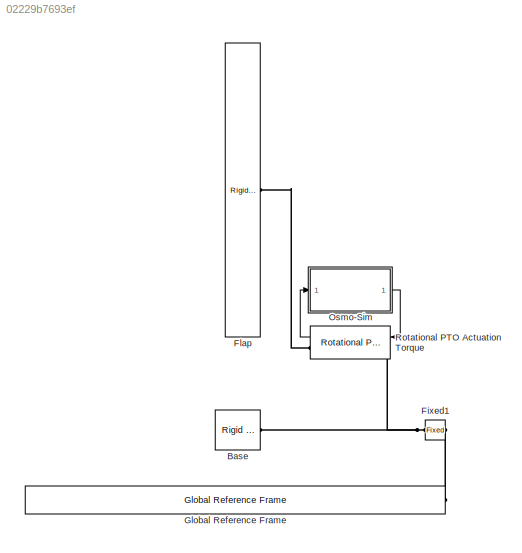
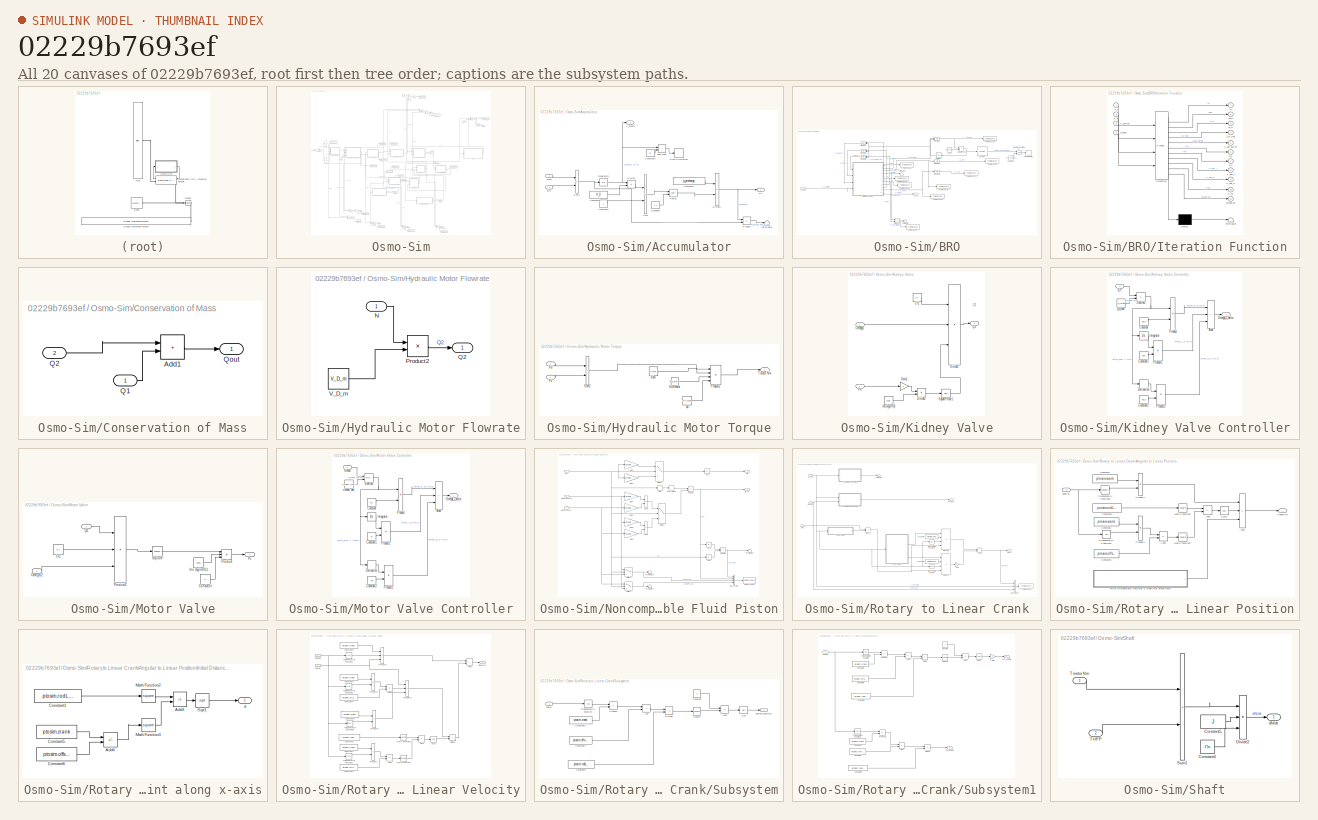
[diagram: thumbnail index - all 20 canvases of the model, root first then tree order]
MODEL slx_02229b7693ef
KIND model
CONFIG AbsTol = auto
CONFIG EnableMultiTasking = on
CONFIG FixedStep = 0.1
CONFIG MaxStep = 0.1
CONFIG MinStep = auto
CONFIG RelTol = 1e-3
CONFIG SampleTimeConstraint = Unconstrained
CONFIG SolverName = ode4
CONFIG StartTime = 0
CONFIG StopTime = 1000
BLOCK [Reference] Base  REF=WECSim_Lib/Body Elements/Rigid Body
  AttributesFormatString = %<body>
  Ports = [0, 0, 0, 0, 0, 0, 1]
  SourceBlock = WECSim_Lib/Body Elements/Rigid Body
  SourceProductName = WEC-Sim
  SourceType = Rigid Body
BLOCK [Reference] Fixed1  REF=WECSim_Lib/Constraints/Fixed
  AttributesFormatString = %<constraint>
  NameLocation = top
  Ports = [0, 0, 0, 0, 0, 1, 1]
  SourceBlock = WECSim_Lib/Constraints/Fixed
  SourceProductName = WEC-Sim
  SourceType = Constraints
BLOCK [Reference] Flap  REF=WECSim_Lib/Body Elements/Rigid Body
  AttributesFormatString = %<body>
  Ports = [0, 0, 0, 0, 0, 0, 1]
  SourceBlock = WECSim_Lib/Body Elements/Rigid Body
  SourceProductName = WEC-Sim
  SourceType = Rigid Body
BLOCK [Reference] Global Reference Frame  REF=WECSim_Lib/Frames/Global Reference Frame
  Ports = [0, 0, 0, 0, 0, 0, 1]
  SourceBlock = WECSim_Lib/Frames/Global Reference Frame
  SourceProductName = WEC-Sim
  SourceType = Frames
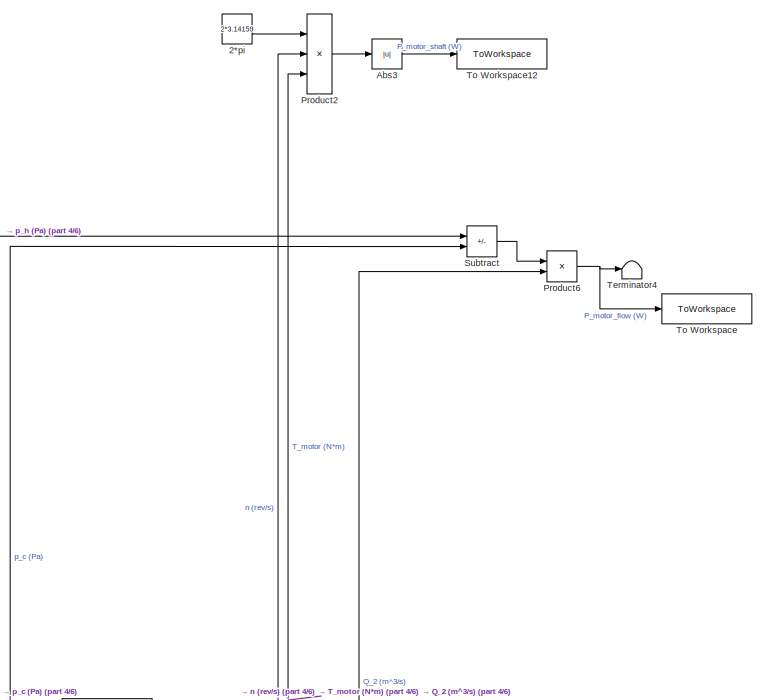
[diagram: Osmo-Sim - part 1/6, top center region]
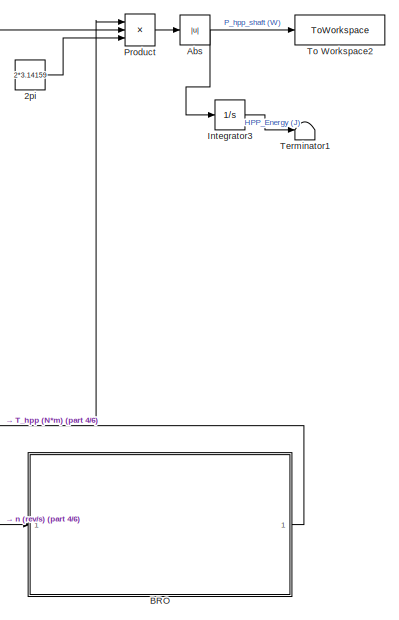
[diagram: Osmo-Sim - part 2/6, top right region]
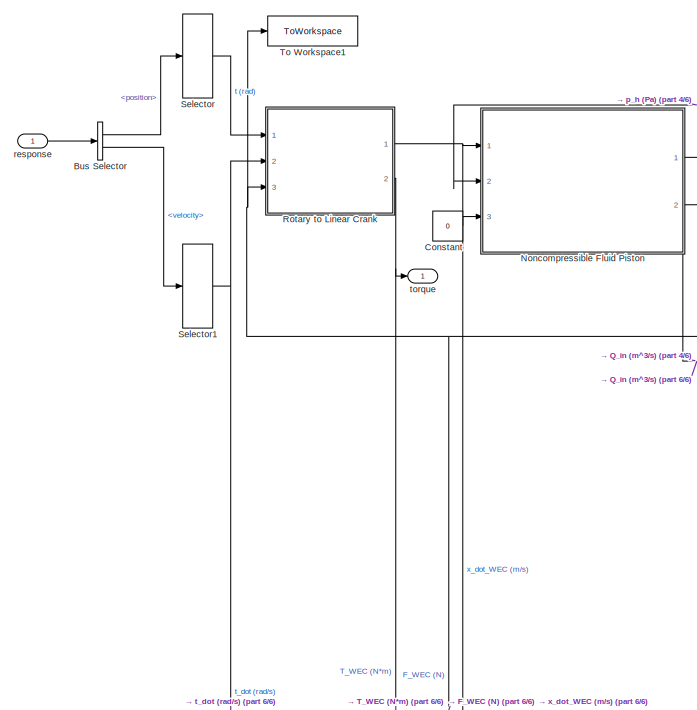
[diagram: Osmo-Sim - part 3/6, middle left region]
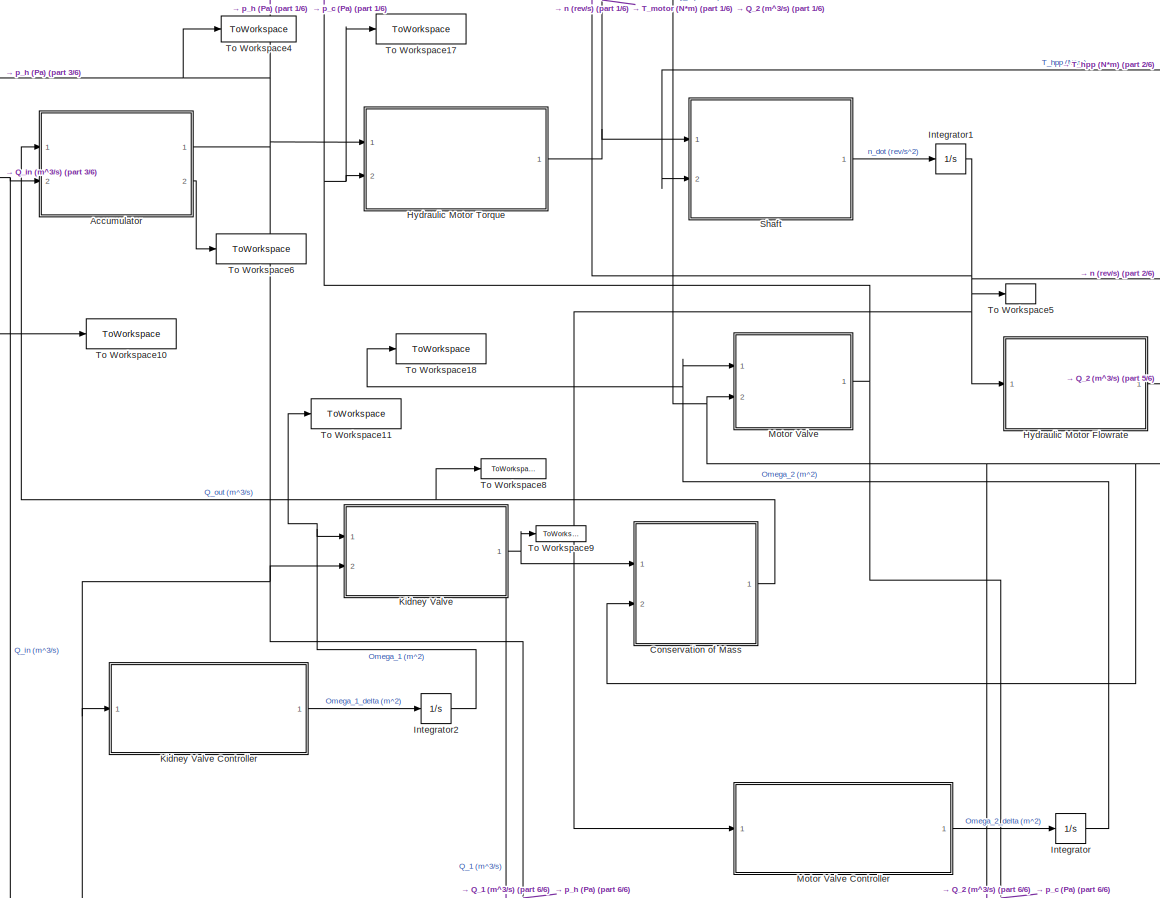
[diagram: Osmo-Sim - part 4/6, central region]
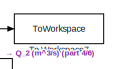
[diagram: Osmo-Sim - part 5/6, middle right region]
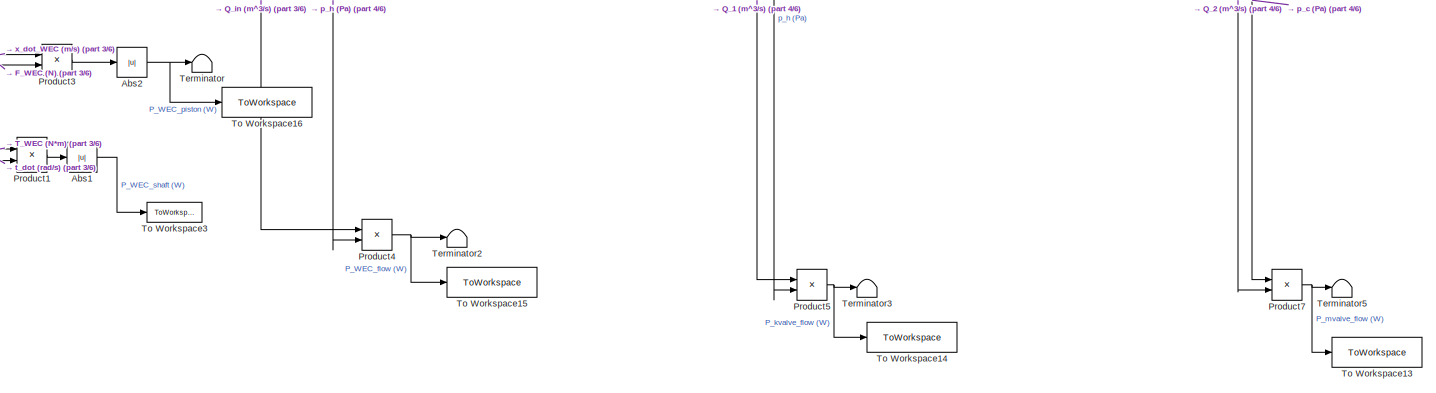
[diagram: Osmo-Sim - part 6/6, bottom center region]
BLOCK [SubSystem] Osmo-Sim
  NameLocation = top
  Ports = [1, 1]
  RequestExecContextInheritance = off
BLOCK [Constant] Osmo-Sim/2*pi
  Value = 2*3.14159
BLOCK [Constant] Osmo-Sim/2pi
  OutDataTypeStr = Inherit: Inherit via back propagation
  Value = 2*3.14159
BLOCK [Abs] Osmo-Sim/Abs
  SaturateOnIntegerOverflow = off
BLOCK [Abs] Osmo-Sim/Abs1
  SaturateOnIntegerOverflow = off
BLOCK [Abs] Osmo-Sim/Abs2
  SaturateOnIntegerOverflow = off
BLOCK [Abs] Osmo-Sim/Abs3
  SaturateOnIntegerOverflow = off
BLOCK [SubSystem] Osmo-Sim/Accumulator
  Ports = [2, 2]
  RequestExecContextInheritance = off
BLOCK [Constant] Osmo-Sim/Accumulator/Constant5
BLOCK [Constant] Osmo-Sim/Accumulator/Constant6
  Value = 0
BLOCK [Constant] Osmo-Sim/Accumulator/Constant7
  Value = p_precharge
BLOCK [Constant] Osmo-Sim/Accumulator/Constant8
  Value = V_0
BLOCK [Product] Osmo-Sim/Accumulator/Divide
  Inputs = */
  Ports = [2, 1]
BLOCK [Product] Osmo-Sim/Accumulator/Divide1
  Inputs = */
  Ports = [2, 1]
BLOCK [Constant] Osmo-Sim/Accumulator/Exponent
  Value = 1.4
BLOCK [Integrator] Osmo-Sim/Accumulator/Integrator4
  InitialCondition = V_rated
  Ports = [1, 1]
BLOCK [RelationalOperator] Osmo-Sim/Accumulator/Less Than
  InputSameDT = off
  Operator = <
  OutDataTypeStr = boolean
  Ports = [2, 1]
  RndMeth = Simplest
BLOCK [Outport] Osmo-Sim/Accumulator/Ph
BLOCK [Math] Osmo-Sim/Accumulator/Power
  Operator = pow
  Ports = [2, 1]
BLOCK [Product] Osmo-Sim/Accumulator/Product
  Ports = [2, 1]
BLOCK [Inport] Osmo-Sim/Accumulator/Qin
  Port = 2
BLOCK [Inport] Osmo-Sim/Accumulator/Qout
BLOCK [Stop] Osmo-Sim/Accumulator/Stop Simulation
BLOCK [Sum] Osmo-Sim/Accumulator/Sum
  IconShape = rectangular
  Inputs = -+
  Ports = [2, 1]
BLOCK [Sum] Osmo-Sim/Accumulator/Sum2
  IconShape = rectangular
  Inputs = -+
  Ports = [2, 1]
BLOCK [Terminator] Osmo-Sim/Accumulator/Terminator
BLOCK [Outport] Osmo-Sim/Accumulator/V_accum
  Port = 2
BLOCK [SubSystem] Osmo-Sim/BRO
  Ports = [1, 1]
  RequestExecContextInheritance = off
BLOCK [Constant] Osmo-Sim/BRO/Constant
  Value = num_batches
BLOCK [Reference] Osmo-Sim/BRO/Counter  REF=dspswit3/Counter
  Ports = [1, 1]
  SourceBlock = dspswit3/Counter
  SourceProductBaseCode = DS
  SourceType = Counter
BLOCK [RelationalOperator] Osmo-Sim/BRO/GreaterThan
  InputSameDT = off
  Operator = >
  OutDataTypeStr = boolean
  Ports = [2, 1]
  RndMeth = Simplest
BLOCK [RelationalOperator] Osmo-Sim/BRO/GreaterThanOrEqual
  InputSameDT = off
  OutDataTypeStr = boolean
  Ports = [2, 1]
  RndMeth = Simplest
BLOCK [Integrator] Osmo-Sim/BRO/Integrator
  ExternalReset = rising
  InitialCondition = V_tank_i
  Ports = [2, 1]
BLOCK [Integrator] Osmo-Sim/BRO/Integrator1
  Ports = [1, 1]
BLOCK [Integrator] Osmo-Sim/BRO/Integrator2
  ExternalReset = rising
  InitialCondition = C_f_i
  Ports = [2, 1]
BLOCK [Integrator] Osmo-Sim/BRO/Integrator4
  ExternalReset = rising
  Ports = [2, 1]
BLOCK [Integrator] Osmo-Sim/BRO/Integrator5
  ExternalReset = rising
  InitialCondition = C_f_i
  Ports = [2, 1]
BLOCK [Integrator] Osmo-Sim/BRO/Integrator6
  Ports = [1, 1]
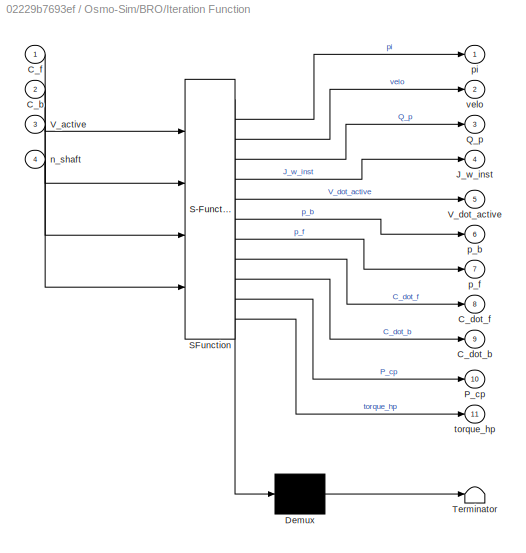
BLOCK [SubSystem] Osmo-Sim/BRO/Iteration Function
  ErrorFcn = Stateflow.Translate.translate
  PermitHierarchicalResolution = ExplicitOnly
  Ports = [4, 11]
  RequestExecContextInheritance = off
  SFBlockType = MATLAB Function
  TreatAsAtomicUnit = on
BLOCK [Demux] Osmo-Sim/BRO/Iteration Function/ Demux 
  Outputs = 1
  Ports = [1, 1]
BLOCK [S-Function] Osmo-Sim/BRO/Iteration Function/ SFunction 
  EnableBusSupport = on
  FunctionName = sf_sfun
  Parameters = A_mem,A_p,A_w,D,L_mem,Q_cp,Sc,V_D_hpp,V_mem,b,eta_cp,eta_hp,n_par,n_ser,nu,rho_f,thick
  PortCounts = [4 12]
  Ports = [4, 12]
  SFcnIsStateOwnerBlock = off
  SFunctionDeploymentMode = off
  Tag = Stateflow S-Function 4
BLOCK [Terminator] Osmo-Sim/BRO/Iteration Function/ Terminator 
BLOCK [Inport] Osmo-Sim/BRO/Iteration Function/C_b
  Port = 2
BLOCK [Outport] Osmo-Sim/BRO/Iteration Function/C_dot_b
  Port = 9
BLOCK [Outport] Osmo-Sim/BRO/Iteration Function/C_dot_f
  Port = 8
BLOCK [Inport] Osmo-Sim/BRO/Iteration Function/C_f
BLOCK [Outport] Osmo-Sim/BRO/Iteration Function/J_w_inst
  Port = 4
BLOCK [Outport] Osmo-Sim/BRO/Iteration Function/P_cp
  Port = 10
BLOCK [Outport] Osmo-Sim/BRO/Iteration Function/Q_p
  Port = 3
BLOCK [Inport] Osmo-Sim/BRO/Iteration Function/V_active
  Port = 3
BLOCK [Outport] Osmo-Sim/BRO/Iteration Function/V_dot_active
  Port = 5
BLOCK [Inport] Osmo-Sim/BRO/Iteration Function/n_shaft
  Port = 4
BLOCK [Outport] Osmo-Sim/BRO/Iteration Function/p_b
  Port = 6
BLOCK [Outport] Osmo-Sim/BRO/Iteration Function/p_f
  Port = 7
BLOCK [Outport] Osmo-Sim/BRO/Iteration Function/pi
BLOCK [Outport] Osmo-Sim/BRO/Iteration Function/torque_hp
  Port = 11
BLOCK [Outport] Osmo-Sim/BRO/Iteration Function/velo
  Port = 2
BLOCK [Constant] Osmo-Sim/BRO/L_tank
  Value = 0.95*L_tank
BLOCK [Product] Osmo-Sim/BRO/Product
  Ports = [2, 1]
BLOCK [Stop] Osmo-Sim/BRO/Stop Simulation
BLOCK [Outport] Osmo-Sim/BRO/T_hp
BLOCK [Terminator] Osmo-Sim/BRO/Terminator
BLOCK [Terminator] Osmo-Sim/BRO/Terminator1
BLOCK [ToWorkspace] Osmo-Sim/BRO/To Workspace
  FixptAsFi = on
  MaxDataPoints = inf
  Ports = [1]
  SampleTime = -1
  SaveFormat = Timeseries
  VariableName = V_p_tot
BLOCK [ToWorkspace] Osmo-Sim/BRO/To Workspace1
  FixptAsFi = on
  MaxDataPoints = inf
  Ports = [1]
  SampleTime = -1
  SaveFormat = Timeseries
  VariableName = E_cp
BLOCK [ToWorkspace] Osmo-Sim/BRO/To Workspace2
  FixptAsFi = on
  MaxDataPoints = inf
  Ports = [1]
  SampleTime = -1
  SaveFormat = Timeseries
  VariableName = pi
BLOCK [ToWorkspace] Osmo-Sim/BRO/To Workspace3
  FixptAsFi = on
  MaxDataPoints = inf
  Ports = [1]
  SampleTime = -1
  SaveFormat = Timeseries
  VariableName = p_b
BLOCK [ToWorkspace] Osmo-Sim/BRO/To Workspace4
  FixptAsFi = on
  MaxDataPoints = inf
  Ports = [1]
  SampleTime = -1
  SaveFormat = Timeseries
  VariableName = p_f
BLOCK [ToWorkspace] Osmo-Sim/BRO/To Workspace5
  FixptAsFi = on
  MaxDataPoints = inf
  Ports = [1]
  SampleTime = -1
  SaveFormat = Timeseries
  VariableName = x_tank
BLOCK [ToWorkspace] Osmo-Sim/BRO/To Workspace6
  FixptAsFi = on
  MaxDataPoints = inf
  Ports = [1]
  SampleTime = -1
  SaveFormat = Timeseries
  VariableName = Q_p
BLOCK [ToWorkspace] Osmo-Sim/BRO/To Workspace7
  FixptAsFi = on
  MaxDataPoints = inf
  Ports = [1]
  SampleTime = -1
  SaveFormat = Timeseries
  VariableName = P_hpp_flow
BLOCK [ToWorkspace] Osmo-Sim/BRO/To Workspace8
  FixptAsFi = on
  MaxDataPoints = inf
  Ports = [1]
  SampleTime = -1
  SaveFormat = Timeseries
  VariableName = P_cp
BLOCK [UnitDelay] Osmo-Sim/BRO/Unit Delay
  HasFrameUpgradeWarning = on
  SampleTime = -1
BLOCK [Inport] Osmo-Sim/BRO/n_shaft
BLOCK [BusSelector] Osmo-Sim/Bus Selector
  OutputSignals = position,velocity
  Ports = [1, 2]
BLOCK [SubSystem] Osmo-Sim/Conservation of Mass
  Ports = [2, 1]
  RequestExecContextInheritance = off
BLOCK [Sum] Osmo-Sim/Conservation of Mass/Add1
  IconShape = rectangular
  Ports = [2, 1]
BLOCK [Inport] Osmo-Sim/Conservation of Mass/Q1
BLOCK [Inport] Osmo-Sim/Conservation of Mass/Q2
  Port = 2
BLOCK [Outport] Osmo-Sim/Conservation of Mass/Qout
BLOCK [Constant] Osmo-Sim/Constant
  Value = 0
BLOCK [SubSystem] Osmo-Sim/Hydraulic Motor Flowrate
  Ports = [1, 1]
  RequestExecContextInheritance = off
BLOCK [Inport] Osmo-Sim/Hydraulic Motor Flowrate/N
BLOCK [Product] Osmo-Sim/Hydraulic Motor Flowrate/Product2
  Ports = [2, 1]
BLOCK [Outport] Osmo-Sim/Hydraulic Motor Flowrate/Q2
BLOCK [Constant] Osmo-Sim/Hydraulic Motor Flowrate/V_D_m
  Value = V_D_m
BLOCK [SubSystem] Osmo-Sim/Hydraulic Motor Torque
  Ports = [2, 1]
  RequestExecContextInheritance = off
BLOCK [Constant] Osmo-Sim/Hydraulic Motor Torque/2pi
  Value = 2*3.14159
BLOCK [Constant] Osmo-Sim/Hydraulic Motor Torque/Eta Motor
  Value = eta_motor
BLOCK [Inport] Osmo-Sim/Hydraulic Motor Torque/Pc
  Port = 2
BLOCK [Inport] Osmo-Sim/Hydraulic Motor Torque/Ph
BLOCK [Product] Osmo-Sim/Hydraulic Motor Torque/Product2
  Inputs = ***/
  Ports = [4, 1]
BLOCK [Sum] Osmo-Sim/Hydraulic Motor Torque/Sum2
  IconShape = rectangular
  Inputs = +-
  Ports = [2, 1]
BLOCK [Outport] Osmo-Sim/Hydraulic Motor Torque/Tmotor Nm
BLOCK [Constant] Osmo-Sim/Hydraulic Motor Torque/Vdm
  Value = V_D_m
BLOCK [Integrator] Osmo-Sim/Integrator
  InitialCondition = Omega_2_init
  NameLocation = top
  Ports = [1, 1]
BLOCK [Integrator] Osmo-Sim/Integrator1
  InitialCondition = angVelInit
  Ports = [1, 1]
BLOCK [Integrator] Osmo-Sim/Integrator2
  InitialCondition = Omega_1_init
  NameLocation = top
  Ports = [1, 1]
BLOCK [Integrator] Osmo-Sim/Integrator3
  Ports = [1, 1]
BLOCK [SubSystem] Osmo-Sim/Kidney Valve
  Ports = [2, 1]
  RequestExecContextInheritance = off
BLOCK [SubSystem] Osmo-Sim/Kidney Valve Controller
  Ports = [1, 1]
  RequestExecContextInheritance = off
BLOCK [Sum] Osmo-Sim/Kidney Valve Controller/Add
  IconShape = rectangular
  Inputs = +++
  Ports = [3, 1]
BLOCK [Constant] Osmo-Sim/Kidney Valve Controller/Constant
  Value = Kp_k
BLOCK [Constant] Osmo-Sim/Kidney Valve Controller/Constant1
  Value = Ki_k
BLOCK [Constant] Osmo-Sim/Kidney Valve Controller/Constant2
  Value = Kd_k
BLOCK [Derivative] Osmo-Sim/Kidney Valve Controller/Derivative
BLOCK [Integrator] Osmo-Sim/Kidney Valve Controller/Integrator
  Ports = [1, 1]
BLOCK [Outport] Osmo-Sim/Kidney Valve Controller/Omega_1_delta
BLOCK [Product] Osmo-Sim/Kidney Valve Controller/Product
  Ports = [2, 1]
BLOCK [Product] Osmo-Sim/Kidney Valve Controller/Product1
  Ports = [2, 1]
BLOCK [Product] Osmo-Sim/Kidney Valve Controller/Product2
  Ports = [2, 1]
BLOCK [Sum] Osmo-Sim/Kidney Valve Controller/Subtract
  IconShape = rectangular
  Inputs = -+
  Ports = [2, 1]
BLOCK [Inport] Osmo-Sim/Kidney Valve Controller/p_h
BLOCK [Constant] Osmo-Sim/Kidney Valve Controller/p_h_des
  Value = p_rated
BLOCK [Constant] Osmo-Sim/Kidney Valve/Cf1
  Value = 0.7
BLOCK [Product] Osmo-Sim/Kidney Valve/Divide1
  Inputs = ***
  Ports = [3, 1]
BLOCK [Product] Osmo-Sim/Kidney Valve/Divide2
  Inputs = */
  Ports = [2, 1]
BLOCK [Gain] Osmo-Sim/Kidney Valve/Gain1
  Gain = 2
BLOCK [Inport] Osmo-Sim/Kidney Valve/Omega1
BLOCK [Inport] Osmo-Sim/Kidney Valve/Ph
  Port = 2
BLOCK [Outport] Osmo-Sim/Kidney Valve/Q1
BLOCK [Sqrt] Osmo-Sim/Kidney Valve/Square Root1
BLOCK [Constant] Osmo-Sim/Kidney Valve/rho (kg//m^3)
  Value = 1025
BLOCK [SubSystem] Osmo-Sim/Motor Valve
  Ports = [2, 1]
  RequestExecContextInheritance = off
  ShowPortLabels = FromPortBlockName
BLOCK [SubSystem] Osmo-Sim/Motor Valve Controller
  Ports = [1, 1]
  RequestExecContextInheritance = off
BLOCK [Sum] Osmo-Sim/Motor Valve Controller/Add
  IconShape = rectangular
  Inputs = +++
  Ports = [3, 1]
BLOCK [Constant] Osmo-Sim/Motor Valve Controller/Constant
  Value = Kp
BLOCK [Constant] Osmo-Sim/Motor Valve Controller/Constant1
  Value = Ki
BLOCK [Constant] Osmo-Sim/Motor Valve Controller/Constant2
  Value = Kd
BLOCK [Derivative] Osmo-Sim/Motor Valve Controller/Derivative
BLOCK [Integrator] Osmo-Sim/Motor Valve Controller/Integrator
  Ports = [1, 1]
BLOCK [Inport] Osmo-Sim/Motor Valve Controller/Nshaft
BLOCK [Outport] Osmo-Sim/Motor Valve Controller/Omega_2_delta
BLOCK [Product] Osmo-Sim/Motor Valve Controller/Product
  Ports = [2, 1]
BLOCK [Product] Osmo-Sim/Motor Valve Controller/Product1
  Ports = [2, 1]
BLOCK [Product] Osmo-Sim/Motor Valve Controller/Product2
  Ports = [2, 1]
BLOCK [Sum] Osmo-Sim/Motor Valve Controller/Subtract
  IconShape = rectangular
  Inputs = -+
  Ports = [2, 1]
BLOCK [Constant] Osmo-Sim/Motor Valve Controller/n shaft des
  Value = n_shaft_ref_m
BLOCK [Constant] Osmo-Sim/Motor Valve/Cf1
  Value = 0.7
BLOCK [Constant] Osmo-Sim/Motor Valve/Constant
  Value = 2
BLOCK [Inport] Osmo-Sim/Motor Valve/Omega2
BLOCK [Outport] Osmo-Sim/Motor Valve/Pc
BLOCK [Product] Osmo-Sim/Motor Valve/Product
  Inputs = **/
  Ports = [3, 1]
BLOCK [Product] Osmo-Sim/Motor Valve/Product2
  Inputs = *//
  Ports = [3, 1]
BLOCK [Inport] Osmo-Sim/Motor Valve/Q2
  Port = 2
BLOCK [Math] Osmo-Sim/Motor Valve/Square
  Operator = square
  Ports = [1, 1]
BLOCK [Constant] Osmo-Sim/Motor Valve/rho (kg//m^3)1
  Value = 1025
BLOCK [SubSystem] Osmo-Sim/Noncompressible Fluid Piston
  Ports = [3, 2]
  RequestExecContextInheritance = off
BLOCK [Abs] Osmo-Sim/Noncompressible Fluid Piston/Abs
  SaturateOnIntegerOverflow = off
BLOCK [Abs] Osmo-Sim/Noncompressible Fluid Piston/Abs4
  SaturateOnIntegerOverflow = off
BLOCK [Abs] Osmo-Sim/Noncompressible Fluid Piston/Abs5
  SaturateOnIntegerOverflow = off
BLOCK [BusCreator] Osmo-Sim/Noncompressible Fluid Piston/Bus Creator
  DisplayOption = bar
  InheritFromInputs = on
  Inputs = 4
  Ports = [4, 1]
BLOCK [Gain] Osmo-Sim/Noncompressible Fluid Piston/Gain1
  Gain = ptosim.topA
BLOCK [Gain] Osmo-Sim/Noncompressible Fluid Piston/Gain2
  Gain = ptosim.botA
BLOCK [Gain] Osmo-Sim/Noncompressible Fluid Piston/Gain3
  Gain = ptosim.topA
BLOCK [Gain] Osmo-Sim/Noncompressible Fluid Piston/Gain4
  Gain = ptosim.botA
BLOCK [Gain] Osmo-Sim/Noncompressible Fluid Piston/Gain5
  Gain = ptosim.topA
BLOCK [Gain] Osmo-Sim/Noncompressible Fluid Piston/Gain6
  Gain = ptosim.botA
BLOCK [Product] Osmo-Sim/Noncompressible Fluid Piston/Podut1
  NameLocation = top
  Ports = [2, 1]
  RndMeth = Zero
BLOCK [Product] Osmo-Sim/Noncompressible Fluid Piston/Podut2
  NameLocation = top
  Ports = [2, 1]
  RndMeth = Zero
BLOCK [Outport] Osmo-Sim/Noncompressible Fluid Piston/Qin
  Port = 2
BLOCK [Signum] Osmo-Sim/Noncompressible Fluid Piston/Sign
BLOCK [Sum] Osmo-Sim/Noncompressible Fluid Piston/Sum1
  IconShape = rectangular
  Inputs = +-
  Ports = [2, 1]
BLOCK [Sum] Osmo-Sim/Noncompressible Fluid Piston/Sum2
  IconShape = rectangular
  Inputs = +-
  Ports = [2, 1]
BLOCK [Switch] Osmo-Sim/Noncompressible Fluid Piston/Switch1
  Criteria = u2 > Threshold
  InputSameDT = off
  SaturateOnIntegerOverflow = off
BLOCK [Switch] Osmo-Sim/Noncompressible Fluid Piston/Switch2
  Criteria = u2 > Threshold
  InputSameDT = off
  SaturateOnIntegerOverflow = off
BLOCK [Switch] Osmo-Sim/Noncompressible Fluid Piston/Switch3
  Criteria = u2 > Threshold
  InputSameDT = off
  SaturateOnIntegerOverflow = off
BLOCK [Switch] Osmo-Sim/Noncompressible Fluid Piston/Switch4
  Criteria = u2 > Threshold
  InputSameDT = off
  SaturateOnIntegerOverflow = off
BLOCK [Terminator] Osmo-Sim/Noncompressible Fluid Piston/Terminator1
BLOCK [Terminator] Osmo-Sim/Noncompressible Fluid Piston/Terminator2
BLOCK [Terminator] Osmo-Sim/Noncompressible Fluid Piston/Terminator3
BLOCK [ToWorkspace] Osmo-Sim/Noncompressible Fluid Piston/To Workspace
  Decimation = round(simu.dtOut/simu.dt,0)
  FixptAsFi = on
  MaxDataPoints = inf
  Ports = [1]
  SampleTime = -1
  SaveFormat = Structure With Time
  VariableName = pistonNCF1_out
BLOCK [UnaryMinus] Osmo-Sim/Noncompressible Fluid Piston/Unary Minus
BLOCK [Outport] Osmo-Sim/Noncompressible Fluid Piston/force
BLOCK [Inport] Osmo-Sim/Noncompressible Fluid Piston/highPressure
  Port = 2
BLOCK [Inport] Osmo-Sim/Noncompressible Fluid Piston/lowPressure
  Port = 3
BLOCK [Inport] Osmo-Sim/Noncompressible Fluid Piston/vel
BLOCK [Product] Osmo-Sim/Product
  Inputs = 3
  Ports = [3, 1]
BLOCK [Product] Osmo-Sim/Product1
  Ports = [2, 1]
BLOCK [Product] Osmo-Sim/Product2
  Inputs = 3
  Ports = [3, 1]
BLOCK [Product] Osmo-Sim/Product3
  Ports = [2, 1]
BLOCK [Product] Osmo-Sim/Product4
  Ports = [2, 1]
BLOCK [Product] Osmo-Sim/Product5
  Ports = [2, 1]
BLOCK [Product] Osmo-Sim/Product6
  Ports = [2, 1]
BLOCK [Product] Osmo-Sim/Product7
  Ports = [2, 1]
BLOCK [SubSystem] Osmo-Sim/Rotary to Linear Crank
  AncestorBlock = PTOSim_Lib/Motion Conversion/Rotary to Linear\nCrank
  Ports = [3, 2]
  RequestExecContextInheritance = off
BLOCK [Sum] Osmo-Sim/Rotary to Linear Crank/Add
  IconShape = rectangular
  Ports = [2, 1]
BLOCK [SubSystem] Osmo-Sim/Rotary to Linear Crank/Angular to Linear Position
  Ports = [1, 1]
  RequestExecContextInheritance = off
BLOCK [Sum] Osmo-Sim/Rotary to Linear Crank/Angular to Linear Position/Add1
  IconShape = rectangular
  Inputs = ++-
  Ports = [3, 1]
BLOCK [Sum] Osmo-Sim/Rotary to Linear Crank/Angular to Linear Position/Add2
  IconShape = rectangular
  Inputs = +-
  Ports = [2, 1]
BLOCK [Sum] Osmo-Sim/Rotary to Linear Crank/Angular to Linear Position/Add5
  IconShape = rectangular
  Inputs = +-
  Ports = [2, 1]
BLOCK [Constant] Osmo-Sim/Rotary to Linear Crank/Angular to Linear Position/Constant1
  Value = ptosim.rodLength
BLOCK [Constant] Osmo-Sim/Rotary to Linear Crank/Angular to Linear Position/Constant2
  Value = ptosim.crank
BLOCK [Constant] Osmo-Sim/Rotary to Linear Crank/Angular to Linear Position/Constant3
  Value = ptosim.offset
BLOCK [Constant] Osmo-Sim/Rotary to Linear Crank/Angular to Linear Position/Constant7
  Value = ptosim.crank
BLOCK [SubSystem] Osmo-Sim/Rotary to Linear Crank/Angular to Linear Position/Initial Distance btw flap joint & crank joint along x-axis
  Ports = [0, 1]
  RequestExecContextInheritance = off
BLOCK [Sum] Osmo-Sim/Rotary to Linear Crank/Angular to Linear Position/Initial Distance btw flap joint & crank joint along x-axis/Add3
  IconShape = rectangular
  Inputs = +-
  Ports = [2, 1]
BLOCK [Sum] Osmo-Sim/Rotary to Linear Crank/Angular to Linear Position/Initial Distance btw flap joint & crank joint along x-axis/Add4
  IconShape = rectangular
  Inputs = +-
  Ports = [2, 1]
BLOCK [Constant] Osmo-Sim/Rotary to Linear Crank/Angular to Linear Position/Initial Distance btw flap joint & crank joint along x-axis/Constant1
  Value = ptosim.rodLength
BLOCK [Constant] Osmo-Sim/Rotary to Linear Crank/Angular to Linear Position/Initial Distance btw flap joint & crank joint along x-axis/Constant5
  Value = ptosim.crank
BLOCK [Constant] Osmo-Sim/Rotary to Linear Crank/Angular to Linear Position/Initial Distance btw flap joint & crank joint along x-axis/Constant6
  Value = ptosim.offset
BLOCK [Math] Osmo-Sim/Rotary to Linear Crank/Angular to Linear Position/Initial Distance btw flap joint & crank joint along x-axis/Math Function2
  Operator = square
  Ports = [1, 1]
  SignedPower = on
BLOCK [Math] Osmo-Sim/Rotary to Linear Crank/Angular to Linear Position/Initial Distance btw flap joint & crank joint along x-axis/Math Function3
  Operator = square
  Ports = [1, 1]
  SignedPower = on
BLOCK [Sqrt] Osmo-Sim/Rotary to Linear Crank/Angular to Linear Position/Initial Distance btw flap joint & crank joint along x-axis/Sqrt1
BLOCK [Outport] Osmo-Sim/Rotary to Linear Crank/Angular to Linear Position/Initial Distance btw flap joint & crank joint along x-axis/d
BLOCK [Math] Osmo-Sim/Rotary to Linear Crank/Angular to Linear Position/Math Function1
  Operator = square
  Ports = [1, 1]
  SignedPower = on
BLOCK [Math] Osmo-Sim/Rotary to Linear Crank/Angular to Linear Position/Math Function2
  Operator = square
  Ports = [1, 1]
  SignedPower = on
BLOCK [Product] Osmo-Sim/Rotary to Linear Crank/Angular to Linear Position/Product1
  Inputs = **
  Ports = [2, 1]
BLOCK [Product] Osmo-Sim/Rotary to Linear Crank/Angular to Linear Position/Product7
  Inputs = **
  Ports = [2, 1]
BLOCK [Sqrt] Osmo-Sim/Rotary to Linear Crank/Angular to Linear Position/Sqrt2
BLOCK [Trigonometry] Osmo-Sim/Rotary to Linear Crank/Angular to Linear Position/Trigonometric Function1
  Operator = cos
  Ports = [1, 1]
BLOCK [Trigonometry] Osmo-Sim/Rotary to Linear Crank/Angular to Linear Position/Trigonometric Function5
  Ports = [1, 1]
BLOCK [Inport] Osmo-Sim/Rotary to Linear Crank/Angular to Linear Position/angPos
BLOCK [Outport] Osmo-Sim/Rotary to Linear Crank/Angular to Linear Position/linearPos
BLOCK [SubSystem] Osmo-Sim/Rotary to Linear Crank/Angular to Linear Velocity
  Ports = [2, 1]
  RequestExecContextInheritance = off
BLOCK [Sum] Osmo-Sim/Rotary to Linear Crank/Angular to Linear Velocity/Add1
  IconShape = rectangular
  Inputs = +-
  Ports = [2, 1]
BLOCK [Sum] Osmo-Sim/Rotary to Linear Crank/Angular to Linear Velocity/Add2
  IconShape = rectangular
  Inputs = +-
  Ports = [2, 1]
BLOCK [Sum] Osmo-Sim/Rotary to Linear Crank/Angular to Linear Velocity/Add5
  IconShape = rectangular
  Inputs = +-
  Ports = [2, 1]
BLOCK [Sum] Osmo-Sim/Rotary to Linear Crank/Angular to Linear Velocity/Add7
  IconShape = rectangular
  Ports = [2, 1]
BLOCK [Constant] Osmo-Sim/Rotary to Linear Crank/Angular to Linear Velocity/Constant1
  Value = ptosim.rodLength
BLOCK [Constant] Osmo-Sim/Rotary to Linear Crank/Angular to Linear Velocity/Constant2
  Value = ptosim.crank
BLOCK [Constant] Osmo-Sim/Rotary to Linear Crank/Angular to Linear Velocity/Constant3
  Value = ptosim.offset
BLOCK [Constant] Osmo-Sim/Rotary to Linear Crank/Angular to Linear Velocity/Constant5
  Value = ptosim.crank
BLOCK [Constant] Osmo-Sim/Rotary to Linear Crank/Angular to Linear Velocity/Constant6
  Value = ptosim.offset
BLOCK [Constant] Osmo-Sim/Rotary to Linear Crank/Angular to Linear Velocity/Constant8
  Value = ptosim.crank
BLOCK [Constant] Osmo-Sim/Rotary to Linear Crank/Angular to Linear Velocity/Constant9
  Value = ptosim.crank
BLOCK [Product] Osmo-Sim/Rotary to Linear Crank/Angular to Linear Velocity/Divide1
  Inputs = */
  Ports = [2, 1]
BLOCK [Math] Osmo-Sim/Rotary to Linear Crank/Angular to Linear Velocity/Math Function1
  Operator = square
  Ports = [1, 1]
  SignedPower = on
BLOCK [Math] Osmo-Sim/Rotary to Linear Crank/Angular to Linear Velocity/Math Function2
  Operator = square
  Ports = [1, 1]
  SignedPower = on
BLOCK [Product] Osmo-Sim/Rotary to Linear Crank/Angular to Linear Velocity/Product1
  Inputs = **
  Ports = [2, 1]
BLOCK [Product] Osmo-Sim/Rotary to Linear Crank/Angular to Linear Velocity/Product5
  Inputs = **
  Ports = [2, 1]
BLOCK [Product] Osmo-Sim/Rotary to Linear Crank/Angular to Linear Velocity/Product6
  Inputs = ***
  Ports = [3, 1]
BLOCK [Product] Osmo-Sim/Rotary to Linear Crank/Angular to Linear Velocity/Product8
  Inputs = ***
  Ports = [3, 1]
BLOCK [Product] Osmo-Sim/Rotary to Linear Crank/Angular to Linear Velocity/Product9
  Inputs = **
  Ports = [2, 1]
BLOCK [Sqrt] Osmo-Sim/Rotary to Linear Crank/Angular to Linear Velocity/Sqrt2
BLOCK [Trigonometry] Osmo-Sim/Rotary to Linear Crank/Angular to Linear Velocity/Trigonometric Function1
  Operator = cos
  Ports = [1, 1]
BLOCK [Trigonometry] Osmo-Sim/Rotary to Linear Crank/Angular to Linear Velocity/Trigonometric Function3
  Operator = cos
  Ports = [1, 1]
BLOCK [Trigonometry] Osmo-Sim/Rotary to Linear Crank/Angular to Linear Velocity/Trigonometric Function4
  Operator = cos
  Ports = [1, 1]
BLOCK [Trigonometry] Osmo-Sim/Rotary to Linear Crank/Angular to Linear Velocity/Trigonometric Function6
  Ports = [1, 1]
BLOCK [Inport] Osmo-Sim/Rotary to Linear Crank/Angular to Linear Velocity/angPos
BLOCK [Inport] Osmo-Sim/Rotary to Linear Crank/Angular to Linear Velocity/angVel
  Port = 2
BLOCK [Outport] Osmo-Sim/Rotary to Linear Crank/Angular to Linear Velocity/linearVel
BLOCK [BusCreator] Osmo-Sim/Rotary to Linear Crank/Bus Creator
  DisplayOption = bar
  InheritFromInputs = on
  Inputs = 3
  Ports = [3, 1]
BLOCK [Constant] Osmo-Sim/Rotary to Linear Crank/Constant5
  Value = ptosim.crank
BLOCK [Constant] Osmo-Sim/Rotary to Linear Crank/Constant6
  Value = ptosim.crank
BLOCK [Product] Osmo-Sim/Rotary to Linear Crank/Divide3
  Inputs = */
  Ports = [2, 1]
BLOCK [Gain] Osmo-Sim/Rotary to Linear Crank/Gain
  Gain = -1
BLOCK [Product] Osmo-Sim/Rotary to Linear Crank/Product
  Inputs = 4
  Ports = [4, 1]
BLOCK [Product] Osmo-Sim/Rotary to Linear Crank/Product3
  Inputs = 4
  Ports = [4, 1]
BLOCK [SubSystem] Osmo-Sim/Rotary to Linear Crank/Subsystem
  Ports = [1, 1]
  RequestExecContextInheritance = off
BLOCK [Sum] Osmo-Sim/Rotary to Linear Crank/Subsystem/Add
  IconShape = rectangular
  Inputs = +-
  Ports = [2, 1]
BLOCK [Sum] Osmo-Sim/Rotary to Linear Crank/Subsystem/Add1
  IconShape = rectangular
  Inputs = +-
  Ports = [2, 1]
BLOCK [Constant] Osmo-Sim/Rotary to Linear Crank/Subsystem/Constant
BLOCK [Constant] Osmo-Sim/Rotary to Linear Crank/Subsystem/Constant2
  Value = ptosim.crank
BLOCK [Constant] Osmo-Sim/Rotary to Linear Crank/Subsystem/Constant3
  Value = ptosim.offset
BLOCK [Constant] Osmo-Sim/Rotary to Linear Crank/Subsystem/Constant4
  Value = ptosim.rodLength
BLOCK [Product] Osmo-Sim/Rotary to Linear Crank/Subsystem/Divide
  Inputs = */
  Ports = [2, 1]
BLOCK [Product] Osmo-Sim/Rotary to Linear Crank/Subsystem/Product
  Ports = [2, 1]
BLOCK [Sqrt] Osmo-Sim/Rotary to Linear Crank/Subsystem/Sqrt
BLOCK [Math] Osmo-Sim/Rotary to Linear Crank/Subsystem/Square
  Operator = square
  Ports = [1, 1]
  SignedPower = on
BLOCK [Trigonometry] Osmo-Sim/Rotary to Linear Crank/Subsystem/Trigonometric Function
  Operator = cos
  Ports = [1, 1]
BLOCK [Outport] Osmo-Sim/Rotary to Linear Crank/Subsystem/abs(cos_gamma)
BLOCK [Inport] Osmo-Sim/Rotary to Linear Crank/Subsystem/angle
BLOCK [SubSystem] Osmo-Sim/Rotary to Linear Crank/Subsystem1
  AncestorBlock = PTOSim_Lib/Motion Conversion/Rotary to Linear\nAdjustable Rod/Subsystem
  Ports = [1, 2]
  RequestExecContextInheritance = off
BLOCK [Sum] Osmo-Sim/Rotary to Linear Crank/Subsystem1/Add
  IconShape = rectangular
  Inputs = +-
  Ports = [2, 1]
BLOCK [Sum] Osmo-Sim/Rotary to Linear Crank/Subsystem1/Add1
  IconShape = rectangular
  Inputs = +-
  Ports = [2, 1]
BLOCK [Sum] Osmo-Sim/Rotary to Linear Crank/Subsystem1/Add2
  IconShape = rectangular
  Inputs = +-
  Ports = [2, 1]
BLOCK [Constant] Osmo-Sim/Rotary to Linear Crank/Subsystem1/Constant
BLOCK [Constant] Osmo-Sim/Rotary to Linear Crank/Subsystem1/Constant1
  Value = ptosim.crank
BLOCK [Constant] Osmo-Sim/Rotary to Linear Crank/Subsystem1/Constant2
  Value = ptosim.crank
BLOCK [Constant] Osmo-Sim/Rotary to Linear Crank/Subsystem1/Constant3
  Value = ptosim.offset
BLOCK [Constant] Osmo-Sim/Rotary to Linear Crank/Subsystem1/Constant4
  Value = ptosim.offset
BLOCK [Constant] Osmo-Sim/Rotary to Linear Crank/Subsystem1/Constant5
  Value = ptosim.rodLength
BLOCK [Constant] Osmo-Sim/Rotary to Linear Crank/Subsystem1/Constant6
  Value = ptosim.rodLength
BLOCK [Product] Osmo-Sim/Rotary to Linear Crank/Subsystem1/Divide
  Inputs = */
  Ports = [2, 1]
BLOCK [Product] Osmo-Sim/Rotary to Linear Crank/Subsystem1/Divide1
  Inputs = */
  Ports = [2, 1]
BLOCK [Gain] Osmo-Sim/Rotary to Linear Crank/Subsystem1/Gain
  Gain = -1
BLOCK [Product] Osmo-Sim/Rotary to Linear Crank/Subsystem1/Product
  Ports = [2, 1]
BLOCK [Product] Osmo-Sim/Rotary to Linear Crank/Subsystem1/Product1
  Ports = [2, 1]
BLOCK [Sqrt] Osmo-Sim/Rotary to Linear Crank/Subsystem1/Sqrt
BLOCK [Math] Osmo-Sim/Rotary to Linear Crank/Subsystem1/Square
  Operator = square
  Ports = [1, 1]
  SignedPower = on
BLOCK [Trigonometry] Osmo-Sim/Rotary to Linear Crank/Subsystem1/Trigonometric Function
  Operator = cos
  Ports = [1, 1]
BLOCK [Trigonometry] Osmo-Sim/Rotary to Linear Crank/Subsystem1/Trigonometric Function1
  Operator = cos
  Ports = [1, 1]
BLOCK [Inport] Osmo-Sim/Rotary to Linear Crank/Subsystem1/angPos
BLOCK [Outport] Osmo-Sim/Rotary to Linear Crank/Subsystem1/cos_gamma
BLOCK [Outport] Osmo-Sim/Rotary to Linear Crank/Subsystem1/sin_gamma
  Port = 2
BLOCK [Terminator] Osmo-Sim/Rotary to Linear Crank/Terminator
BLOCK [ToWorkspace] Osmo-Sim/Rotary to Linear Crank/To Workspace
  Decimation = round(simu.dtOut/simu.dt,0)
  FixptAsFi = on
  MaxDataPoints = inf
  Ports = [1]
  SampleTime = -1
  SaveFormat = Structure With Time
  VariableName = motionMechanism1_out
BLOCK [Trigonometry] Osmo-Sim/Rotary to Linear Crank/Trigonometric Function
  Ports = [1, 1]
BLOCK [Trigonometry] Osmo-Sim/Rotary to Linear Crank/Trigonometric Function6
  Operator = cos
  Ports = [1, 1]
BLOCK [Inport] Osmo-Sim/Rotary to Linear Crank/angPos
BLOCK [Inport] Osmo-Sim/Rotary to Linear Crank/angVel
  Port = 2
BLOCK [Inport] Osmo-Sim/Rotary to Linear Crank/force
  Port = 3
BLOCK [Outport] Osmo-Sim/Rotary to Linear Crank/linearVel
BLOCK [Outport] Osmo-Sim/Rotary to Linear Crank/torque
  Port = 2
BLOCK [Selector] Osmo-Sim/Selector
  IndexOptions = Index vector (dialog)
  Indices = 5
  InputPortWidth = 6
  OutputSizes = 1
  Ports = [1, 1]
BLOCK [Selector] Osmo-Sim/Selector1
  IndexOptions = Index vector (dialog)
  Indices = 5
  InputPortWidth = 6
  OutputSizes = 1
  Ports = [1, 1]
BLOCK [SubSystem] Osmo-Sim/Shaft
  Ports = [2, 1]
  RequestExecContextInheritance = off
BLOCK [Constant] Osmo-Sim/Shaft/Constant4
  Value = 2*pi
BLOCK [Constant] Osmo-Sim/Shaft/Constant5
  Value = J
BLOCK [Product] Osmo-Sim/Shaft/Divide2
  Inputs = *//
  Ports = [3, 1]
BLOCK [Sum] Osmo-Sim/Shaft/Sum1
  IconShape = rectangular
  Ports = [2, 1]
BLOCK [Inport] Osmo-Sim/Shaft/THPP
  Port = 2
BLOCK [Inport] Osmo-Sim/Shaft/Tmotor Nm
BLOCK [Outport] Osmo-Sim/Shaft/dN//dt
BLOCK [Sum] Osmo-Sim/Subtract
  IconShape = rectangular
  Inputs = +-
  Ports = [2, 1]
BLOCK [Terminator] Osmo-Sim/Terminator
BLOCK [Terminator] Osmo-Sim/Terminator1
BLOCK [Terminator] Osmo-Sim/Terminator2
BLOCK [Terminator] Osmo-Sim/Terminator3
BLOCK [Terminator] Osmo-Sim/Terminator4
BLOCK [Terminator] Osmo-Sim/Terminator5
BLOCK [ToWorkspace] Osmo-Sim/To Workspace
  FixptAsFi = on
  MaxDataPoints = inf
  Ports = [1]
  SampleTime = -1
  SaveFormat = Timeseries
  VariableName = P_motor_flow
BLOCK [ToWorkspace] Osmo-Sim/To Workspace1
  FixptAsFi = on
  MaxDataPoints = inf
  Ports = [1]
  SampleTime = -1
  SaveFormat = Timeseries
  VariableName = F_WEC
BLOCK [ToWorkspace] Osmo-Sim/To Workspace10
  FixptAsFi = on
  MaxDataPoints = inf
  Ports = [1]
  SampleTime = -1
  SaveFormat = Timeseries
  VariableName = Q_in
BLOCK [ToWorkspace] Osmo-Sim/To Workspace11
  FixptAsFi = on
  MaxDataPoints = inf
  Ports = [1]
  SampleTime = -1
  SaveFormat = Timeseries
  VariableName = Omega_1
BLOCK [ToWorkspace] Osmo-Sim/To Workspace12
  FixptAsFi = on
  MaxDataPoints = inf
  Ports = [1]
  SampleTime = -1
  SaveFormat = Timeseries
  VariableName = P_motor_shaft
BLOCK [ToWorkspace] Osmo-Sim/To Workspace13
  FixptAsFi = on
  MaxDataPoints = inf
  Ports = [1]
  SampleTime = -1
  SaveFormat = Timeseries
  VariableName = P_mvalve_flow
BLOCK [ToWorkspace] Osmo-Sim/To Workspace14
  FixptAsFi = on
  MaxDataPoints = inf
  Ports = [1]
  SampleTime = -1
  SaveFormat = Timeseries
  VariableName = P_kvalve_flow
BLOCK [ToWorkspace] Osmo-Sim/To Workspace15
  FixptAsFi = on
  MaxDataPoints = inf
  Ports = [1]
  SampleTime = -1
  SaveFormat = Timeseries
  VariableName = P_WEC_flow
BLOCK [ToWorkspace] Osmo-Sim/To Workspace16
  FixptAsFi = on
  MaxDataPoints = inf
  Ports = [1]
  SampleTime = -1
  SaveFormat = Timeseries
  VariableName = P_WEC_piston
BLOCK [ToWorkspace] Osmo-Sim/To Workspace17
  FixptAsFi = on
  MaxDataPoints = inf
  Ports = [1]
  SampleTime = -1
  SaveFormat = Timeseries
  VariableName = p_c
BLOCK [ToWorkspace] Osmo-Sim/To Workspace18
  FixptAsFi = on
  MaxDataPoints = inf
  Ports = [1]
  SampleTime = -1
  SaveFormat = Timeseries
  VariableName = Omega_2
BLOCK [ToWorkspace] Osmo-Sim/To Workspace2
  FixptAsFi = on
  MaxDataPoints = inf
  Ports = [1]
  SampleTime = -1
  SaveFormat = Timeseries
  VariableName = P_hpp_shaft
BLOCK [ToWorkspace] Osmo-Sim/To Workspace3
  FixptAsFi = on
  MaxDataPoints = inf
  Ports = [1]
  SampleTime = -1
  SaveFormat = Timeseries
  VariableName = P_WEC_shaft
BLOCK [ToWorkspace] Osmo-Sim/To Workspace4
  FixptAsFi = on
  MaxDataPoints = inf
  Ports = [1]
  SampleTime = -1
  SaveFormat = Timeseries
  VariableName = p_h
BLOCK [ToWorkspace] Osmo-Sim/To Workspace5
  FixptAsFi = on
  MaxDataPoints = inf
  Ports = [1]
  SampleTime = -1
  SaveFormat = Timeseries
  VariableName = n
BLOCK [ToWorkspace] Osmo-Sim/To Workspace6
  FixptAsFi = on
  MaxDataPoints = inf
  Ports = [1]
  SampleTime = -1
  SaveFormat = Timeseries
  VariableName = V_accum
BLOCK [ToWorkspace] Osmo-Sim/To Workspace7
  FixptAsFi = on
  MaxDataPoints = inf
  Ports = [1]
  SampleTime = -1
  SaveFormat = Timeseries
  VariableName = Q_2
BLOCK [ToWorkspace] Osmo-Sim/To Workspace8
  FixptAsFi = on
  MaxDataPoints = inf
  Ports = [1]
  SampleTime = -1
  SaveFormat = Timeseries
  VariableName = Q_out
BLOCK [ToWorkspace] Osmo-Sim/To Workspace9
  FixptAsFi = on
  MaxDataPoints = inf
  NameLocation = top
  Ports = [1]
  SampleTime = -1
  SaveFormat = Timeseries
  VariableName = Q_1
BLOCK [Inport] Osmo-Sim/response
BLOCK [Outport] Osmo-Sim/torque
  VectorParamsAs1DForOutWhenUnconnected = off
BLOCK [Reference] Rotational PTO Actuation Torque  REF=WECSim_Lib/PTOs/Rotational PTO
Actuation Torque
  AttributesFormatString = %<pto>
  Ports = [1, 1, 0, 0, 0, 1, 1]
  SourceBlock = WECSim_Lib/PTOs/Rotational PTO\nActuation Torque
  SourceProductName = WEC-Sim
  SourceType = PTO
ANNOTATION Osmo-Sim/Kidney Valve: Q1
LINE Osmo-Sim/2*pi:1 -> Osmo-Sim/Product2:1
LINE Osmo-Sim/2pi:1 -> Osmo-Sim/Product:3
LINE Osmo-Sim/Abs1:1 -> Osmo-Sim/To Workspace3:1
NET Osmo-Sim/Abs2:1 -> Osmo-Sim/Terminator:1, Osmo-Sim/To Workspace16:1
LINE Osmo-Sim/Abs3:1 -> Osmo-Sim/To Workspace12:1
NET Osmo-Sim/Abs:1 -> Osmo-Sim/Integrator3:1, Osmo-Sim/To Workspace2:1
LINE Osmo-Sim/Accumulator/Constant5:1 -> Osmo-Sim/Accumulator/Sum:2
LINE Osmo-Sim/Accumulator/Constant6:1 -> Osmo-Sim/Accumulator/Less Than:2
LINE Osmo-Sim/Accumulator/Constant7:1 -> Osmo-Sim/Accumulator/Divide1:1
LINE Osmo-Sim/Accumulator/Constant8:1 -> Osmo-Sim/Accumulator/Divide:2
NET Osmo-Sim/Accumulator/Divide1:1 -> Osmo-Sim/Accumulator/Ph:1, Osmo-Sim/Accumulator/Product:1
LINE Osmo-Sim/Accumulator/Divide:1 -> Osmo-Sim/Accumulator/Sum:1
LINE Osmo-Sim/Accumulator/Exponent:1 -> Osmo-Sim/Accumulator/Power:2
NET Osmo-Sim/Accumulator/Integrator4:1 -> Osmo-Sim/Accumulator/Divide:1, Osmo-Sim/Accumulator/Less Than:1, Osmo-Sim/Accumulator/V_accum:1
LINE Osmo-Sim/Accumulator/Less Than:1 -> Osmo-Sim/Accumulator/Stop Simulation:1
LINE Osmo-Sim/Accumulator/Power:1 -> Osmo-Sim/Accumulator/Divide1:2
LINE Osmo-Sim/Accumulator/Product:1 -> Osmo-Sim/Accumulator/Terminator:1
LINE Osmo-Sim/Accumulator/Qin:1 -> Osmo-Sim/Accumulator/Sum2:2
LINE Osmo-Sim/Accumulator/Qout:1 -> Osmo-Sim/Accumulator/Sum2:1
NET Osmo-Sim/Accumulator/Sum2:1 -> Osmo-Sim/Accumulator/Integrator4:1, Osmo-Sim/Accumulator/Product:2
LINE Osmo-Sim/Accumulator/Sum:1 -> Osmo-Sim/Accumulator/Power:1
NET Osmo-Sim/Accumulator:1 -> Osmo-Sim/Hydraulic Motor Torque:1, Osmo-Sim/Kidney Valve Controller:1, Osmo-Sim/Kidney Valve:2, Osmo-Sim/Noncompressible Fluid Piston:2, Osmo-Sim/Product4:2, Osmo-Sim/Product5:2, Osmo-Sim/Subtract:1, Osmo-Sim/To Workspace4:1
LINE Osmo-Sim/Accumulator:2 -> Osmo-Sim/To Workspace6:1
LINE Osmo-Sim/BRO/Constant:1 -> Osmo-Sim/BRO/GreaterThanOrEqual:2
LINE Osmo-Sim/BRO/Counter:1 -> Osmo-Sim/BRO/GreaterThanOrEqual:1
NET Osmo-Sim/BRO/GreaterThan:1 -> Osmo-Sim/BRO/Counter:1, Osmo-Sim/BRO/Unit Delay:1
LINE Osmo-Sim/BRO/GreaterThanOrEqual:1 -> Osmo-Sim/BRO/Stop Simulation:1
LINE Osmo-Sim/BRO/Integrator1:1 -> Osmo-Sim/BRO/To Workspace:1
LINE Osmo-Sim/BRO/Integrator2:1 -> Osmo-Sim/BRO/Iteration Function:2
NET Osmo-Sim/BRO/Integrator4:1 -> Osmo-Sim/BRO/GreaterThan:1, Osmo-Sim/BRO/To Workspace5:1
LINE Osmo-Sim/BRO/Integrator5:1 -> Osmo-Sim/BRO/Iteration Function:1
LINE Osmo-Sim/BRO/Integrator6:1 -> Osmo-Sim/BRO/To Workspace1:1
LINE Osmo-Sim/BRO/Integrator:1 -> Osmo-Sim/BRO/Iteration Function:3
LINE Osmo-Sim/BRO/Iteration Function:1 -> Osmo-Sim/BRO/To Workspace2:1
NET Osmo-Sim/BRO/Iteration Function:10 -> Osmo-Sim/BRO/Integrator6:1, Osmo-Sim/BRO/To Workspace8:1
LINE Osmo-Sim/BRO/Iteration Function:11 -> Osmo-Sim/BRO/T_hp:1
LINE Osmo-Sim/BRO/Iteration Function:2 -> Osmo-Sim/BRO/Integrator4:1
NET Osmo-Sim/BRO/Iteration Function:3 -> Osmo-Sim/BRO/Integrator1:1, Osmo-Sim/BRO/Product:1, Osmo-Sim/BRO/To Workspace6:1
LINE Osmo-Sim/BRO/Iteration Function:4 -> Osmo-Sim/BRO/Terminator1:1
LINE Osmo-Sim/BRO/Iteration Function:5 -> Osmo-Sim/BRO/Integrator:1
LINE Osmo-Sim/BRO/Iteration Function:6 -> Osmo-Sim/BRO/To Workspace3:1
NET Osmo-Sim/BRO/Iteration Function:7 -> Osmo-Sim/BRO/Product:2, Osmo-Sim/BRO/To Workspace4:1
LINE Osmo-Sim/BRO/Iteration Function:8 -> Osmo-Sim/BRO/Integrator5:1
LINE Osmo-Sim/BRO/Iteration Function:9 -> Osmo-Sim/BRO/Integrator2:1
LINE Osmo-Sim/BRO/L_tank:1 -> Osmo-Sim/BRO/GreaterThan:2
NET Osmo-Sim/BRO/Product:1 -> Osmo-Sim/BRO/Terminator:1, Osmo-Sim/BRO/To Workspace7:1
NET Osmo-Sim/BRO/Unit Delay:1 -> Osmo-Sim/BRO/Integrator2:2, Osmo-Sim/BRO/Integrator4:2, Osmo-Sim/BRO/Integrator5:2, Osmo-Sim/BRO/Integrator:2
LINE Osmo-Sim/BRO/n_shaft:1 -> Osmo-Sim/BRO/Iteration Function:4
NET Osmo-Sim/BRO:1 -> Osmo-Sim/Product:1, Osmo-Sim/Shaft:2
LINE Osmo-Sim/Bus Selector:1 -> Osmo-Sim/Selector:1
LINE Osmo-Sim/Bus Selector:2 -> Osmo-Sim/Selector1:1
LINE Osmo-Sim/Conservation of Mass/Add1:1 -> Osmo-Sim/Conservation of Mass/Qout:1
LINE Osmo-Sim/Conservation of Mass/Q1:1 -> Osmo-Sim/Conservation of Mass/Add1:2
LINE Osmo-Sim/Conservation of Mass/Q2:1 -> Osmo-Sim/Conservation of Mass/Add1:1
NET Osmo-Sim/Conservation of Mass:1 -> Osmo-Sim/Accumulator:1, Osmo-Sim/To Workspace8:1
LINE Osmo-Sim/Constant:1 -> Osmo-Sim/Noncompressible Fluid Piston:3
LINE Osmo-Sim/Hydraulic Motor Flowrate/N:1 -> Osmo-Sim/Hydraulic Motor Flowrate/Product2:1
LINE Osmo-Sim/Hydraulic Motor Flowrate/Product2:1 -> Osmo-Sim/Hydraulic Motor Flowrate/Q2:1
LINE Osmo-Sim/Hydraulic Motor Flowrate/V_D_m:1 -> Osmo-Sim/Hydraulic Motor Flowrate/Product2:2
NET Osmo-Sim/Hydraulic Motor Flowrate:1 -> Osmo-Sim/Conservation of Mass:2, Osmo-Sim/Motor Valve:2, Osmo-Sim/Product6:2, Osmo-Sim/Product7:2, Osmo-Sim/To Workspace7:1
LINE Osmo-Sim/Hydraulic Motor Torque/2pi:1 -> Osmo-Sim/Hydraulic Motor Torque/Product2:4
LINE Osmo-Sim/Hydraulic Motor Torque/Eta Motor:1 -> Osmo-Sim/Hydraulic Motor Torque/Product2:3
LINE Osmo-Sim/Hydraulic Motor Torque/Pc:1 -> Osmo-Sim/Hydraulic Motor Torque/Sum2:2
LINE Osmo-Sim/Hydraulic Motor Torque/Ph:1 -> Osmo-Sim/Hydraulic Motor Torque/Sum2:1
LINE Osmo-Sim/Hydraulic Motor Torque/Product2:1 -> Osmo-Sim/Hydraulic Motor Torque/Tmotor Nm:1
LINE Osmo-Sim/Hydraulic Motor Torque/Sum2:1 -> Osmo-Sim/Hydraulic Motor Torque/Product2:1
LINE Osmo-Sim/Hydraulic Motor Torque/Vdm:1 -> Osmo-Sim/Hydraulic Motor Torque/Product2:2
NET Osmo-Sim/Hydraulic Motor Torque:1 -> Osmo-Sim/Product2:3, Osmo-Sim/Shaft:1
NET Osmo-Sim/Integrator1:1 -> Osmo-Sim/BRO:1, Osmo-Sim/Hydraulic Motor Flowrate:1, Osmo-Sim/Motor Valve Controller:1, Osmo-Sim/Product2:2, Osmo-Sim/Product:2, Osmo-Sim/To Workspace5:1
NET Osmo-Sim/Integrator2:1 -> Osmo-Sim/Kidney Valve:1, Osmo-Sim/To Workspace11:1
LINE Osmo-Sim/Integrator3:1 -> Osmo-Sim/Terminator1:1
NET Osmo-Sim/Integrator:1 -> Osmo-Sim/Motor Valve:1, Osmo-Sim/To Workspace18:1
LINE Osmo-Sim/Kidney Valve Controller/Add:1 -> Osmo-Sim/Kidney Valve Controller/Omega_1_delta:1
LINE Osmo-Sim/Kidney Valve Controller/Constant1:1 -> Osmo-Sim/Kidney Valve Controller/Product1:2
LINE Osmo-Sim/Kidney Valve Controller/Constant2:1 -> Osmo-Sim/Kidney Valve Controller/Product2:2
LINE Osmo-Sim/Kidney Valve Controller/Constant:1 -> Osmo-Sim/Kidney Valve Controller/Product:2
LINE Osmo-Sim/Kidney Valve Controller/Derivative:1 -> Osmo-Sim/Kidney Valve Controller/Product2:1
LINE Osmo-Sim/Kidney Valve Controller/Integrator:1 -> Osmo-Sim/Kidney Valve Controller/Product1:1
LINE Osmo-Sim/Kidney Valve Controller/Product1:1 -> Osmo-Sim/Kidney Valve Controller/Add:2
LINE Osmo-Sim/Kidney Valve Controller/Product2:1 -> Osmo-Sim/Kidney Valve Controller/Add:3
LINE Osmo-Sim/Kidney Valve Controller/Product:1 -> Osmo-Sim/Kidney Valve Controller/Add:1
NET Osmo-Sim/Kidney Valve Controller/Subtract:1 -> Osmo-Sim/Kidney Valve Controller/Derivative:1, Osmo-Sim/Kidney Valve Controller/Integrator:1, Osmo-Sim/Kidney Valve Controller/Product:1
LINE Osmo-Sim/Kidney Valve Controller/p_h:1 -> Osmo-Sim/Kidney Valve Controller/Subtract:1
LINE Osmo-Sim/Kidney Valve Controller/p_h_des:1 -> Osmo-Sim/Kidney Valve Controller/Subtract:2
LINE Osmo-Sim/Kidney Valve Controller:1 -> Osmo-Sim/Integrator2:1
LINE Osmo-Sim/Kidney Valve/Cf1:1 -> Osmo-Sim/Kidney Valve/Divide1:1
LINE Osmo-Sim/Kidney Valve/Divide1:1 -> Osmo-Sim/Kidney Valve/Q1:1
LINE Osmo-Sim/Kidney Valve/Divide2:1 -> Osmo-Sim/Kidney Valve/Square Root1:1
LINE Osmo-Sim/Kidney Valve/Gain1:1 -> Osmo-Sim/Kidney Valve/Divide2:1
LINE Osmo-Sim/Kidney Valve/Omega1:1 -> Osmo-Sim/Kidney Valve/Divide1:2
LINE Osmo-Sim/Kidney Valve/Ph:1 -> Osmo-Sim/Kidney Valve/Gain1:1
LINE Osmo-Sim/Kidney Valve/Square Root1:1 -> Osmo-Sim/Kidney Valve/Divide1:3
LINE Osmo-Sim/Kidney Valve/rho (kg//m^3):1 -> Osmo-Sim/Kidney Valve/Divide2:2
NET Osmo-Sim/Kidney Valve:1 -> Osmo-Sim/Conservation of Mass:1, Osmo-Sim/Product5:1, Osmo-Sim/To Workspace9:1
LINE Osmo-Sim/Motor Valve Controller/Add:1 -> Osmo-Sim/Motor Valve Controller/Omega_2_delta:1
LINE Osmo-Sim/Motor Valve Controller/Constant1:1 -> Osmo-Sim/Motor Valve Controller/Product1:2
LINE Osmo-Sim/Motor Valve Controller/Constant2:1 -> Osmo-Sim/Motor Valve Controller/Product2:2
LINE Osmo-Sim/Motor Valve Controller/Constant:1 -> Osmo-Sim/Motor Valve Controller/Product:2
LINE Osmo-Sim/Motor Valve Controller/Derivative:1 -> Osmo-Sim/Motor Valve Controller/Product2:1
LINE Osmo-Sim/Motor Valve Controller/Integrator:1 -> Osmo-Sim/Motor Valve Controller/Product1:1
LINE Osmo-Sim/Motor Valve Controller/Nshaft:1 -> Osmo-Sim/Motor Valve Controller/Subtract:1
LINE Osmo-Sim/Motor Valve Controller/Product1:1 -> Osmo-Sim/Motor Valve Controller/Add:2
LINE Osmo-Sim/Motor Valve Controller/Product2:1 -> Osmo-Sim/Motor Valve Controller/Add:3
LINE Osmo-Sim/Motor Valve Controller/Product:1 -> Osmo-Sim/Motor Valve Controller/Add:1
NET Osmo-Sim/Motor Valve Controller/Subtract:1 -> Osmo-Sim/Motor Valve Controller/Derivative:1, Osmo-Sim/Motor Valve Controller/Integrator:1, Osmo-Sim/Motor Valve Controller/Product:1
LINE Osmo-Sim/Motor Valve Controller/n shaft des:1 -> Osmo-Sim/Motor Valve Controller/Subtract:2
LINE Osmo-Sim/Motor Valve Controller:1 -> Osmo-Sim/Integrator:1
LINE Osmo-Sim/Motor Valve/Cf1:1 -> Osmo-Sim/Motor Valve/Product2:2
LINE Osmo-Sim/Motor Valve/Constant:1 -> Osmo-Sim/Motor Valve/Product:3
LINE Osmo-Sim/Motor Valve/Omega2:1 -> Osmo-Sim/Motor Valve/Product2:3
LINE Osmo-Sim/Motor Valve/Product2:1 -> Osmo-Sim/Motor Valve/Square:1
LINE Osmo-Sim/Motor Valve/Product:1 -> Osmo-Sim/Motor Valve/Pc:1
LINE Osmo-Sim/Motor Valve/Q2:1 -> Osmo-Sim/Motor Valve/Product2:1
LINE Osmo-Sim/Motor Valve/Square:1 -> Osmo-Sim/Motor Valve/Product:1
LINE Osmo-Sim/Motor Valve/rho (kg//m^3)1:1 -> Osmo-Sim/Motor Valve/Product:2
NET Osmo-Sim/Motor Valve:1 -> Osmo-Sim/Hydraulic Motor Torque:2, Osmo-Sim/Product7:1, Osmo-Sim/Subtract:2, Osmo-Sim/To Workspace17:1
NET Osmo-Sim/Noncompressible Fluid Piston:1 -> Osmo-Sim/Product3:2, Osmo-Sim/Rotary to Linear Crank:3, Osmo-Sim/To Workspace1:1
NET Osmo-Sim/Noncompressible Fluid Piston:2 -> Osmo-Sim/Accumulator:2, Osmo-Sim/Product4:1, Osmo-Sim/To Workspace10:1
LINE Osmo-Sim/Product1:1 -> Osmo-Sim/Abs1:1
LINE Osmo-Sim/Product2:1 -> Osmo-Sim/Abs3:1
LINE Osmo-Sim/Product3:1 -> Osmo-Sim/Abs2:1
NET Osmo-Sim/Product4:1 -> Osmo-Sim/Terminator2:1, Osmo-Sim/To Workspace15:1
NET Osmo-Sim/Product5:1 -> Osmo-Sim/Terminator3:1, Osmo-Sim/To Workspace14:1
NET Osmo-Sim/Product6:1 -> Osmo-Sim/Terminator4:1, Osmo-Sim/To Workspace:1
NET Osmo-Sim/Product7:1 -> Osmo-Sim/Terminator5:1, Osmo-Sim/To Workspace13:1
LINE Osmo-Sim/Product:1 -> Osmo-Sim/Abs:1
NET Osmo-Sim/Rotary to Linear Crank:1 -> Osmo-Sim/Noncompressible Fluid Piston:1, Osmo-Sim/Product3:1
NET Osmo-Sim/Rotary to Linear Crank:2 -> Osmo-Sim/Product1:1, Osmo-Sim/torque:1
NET Osmo-Sim/Selector1:1 -> Osmo-Sim/Product1:2, Osmo-Sim/Rotary to Linear Crank:2
LINE Osmo-Sim/Selector:1 -> Osmo-Sim/Rotary to Linear Crank:1
LINE Osmo-Sim/Shaft/Constant4:1 -> Osmo-Sim/Shaft/Divide2:3
LINE Osmo-Sim/Shaft/Constant5:1 -> Osmo-Sim/Shaft/Divide2:2
LINE Osmo-Sim/Shaft/Divide2:1 -> Osmo-Sim/Shaft/dN//dt:1
LINE Osmo-Sim/Shaft/Sum1:1 -> Osmo-Sim/Shaft/Divide2:1
LINE Osmo-Sim/Shaft/THPP:1 -> Osmo-Sim/Shaft/Sum1:2
LINE Osmo-Sim/Shaft/Tmotor Nm:1 -> Osmo-Sim/Shaft/Sum1:1
LINE Osmo-Sim/Shaft:1 -> Osmo-Sim/Integrator1:1
LINE Osmo-Sim/Subtract:1 -> Osmo-Sim/Product6:1
LINE Osmo-Sim/response:1 -> Osmo-Sim/Bus Selector:1
LINE Osmo-Sim:1 -> Rotational PTO Actuation Torque:1
LINE Rotational PTO Actuation Torque:1 -> Osmo-Sim:1
PNET net1: Base:RConn1 -- Fixed1:RConn1 -- Rotational PTO Actuation Torque:LConn1
PLINE Fixed1:LConn1 -- Global Reference Frame:RConn1
PLINE Flap:RConn1 -- Rotational PTO Actuation Torque:RConn1
note: NET lines group one-source signal fan-out (src -> all destinations, sorted); 1:1 wires keep LINE; PNET lines group multi-terminal physical nets as a canonical sorted terminal list (undirected conserving connections); 2-terminal nets keep the pairwise PLINE form
CHART Osmo-Sim/BRO/Iteration Function states=1 transitions=1
  STATE_LABEL 'eML_blk_kernel()'
  STATE_LABEL 'SCRIPT:\nfunction [pi,velo, Q_p, J_w_inst, V_dot_active, p_b, p_f, C_dot_f, C_dot_b, P_cp, torque_hp] = Iteration_Function(C_f, C_b, V_active, n_shaft, V_D_hpp, eta_cp, n_par, n_ser, L_mem, A_mem, V_mem, A_w, thick, nu, D, Sc, b, rho_f, eta_hp, Q_cp, A_p)\n%% CONTROL EFFORT\n\n%% Pump Flow Rate Conversion\nQ_hp = n_shaft * V_D_hpp;              %flow rate of HPP (assuming same shaft speed as HM) [m^3/s...<+2041ch>'
CHART  states=0 transitions=0
